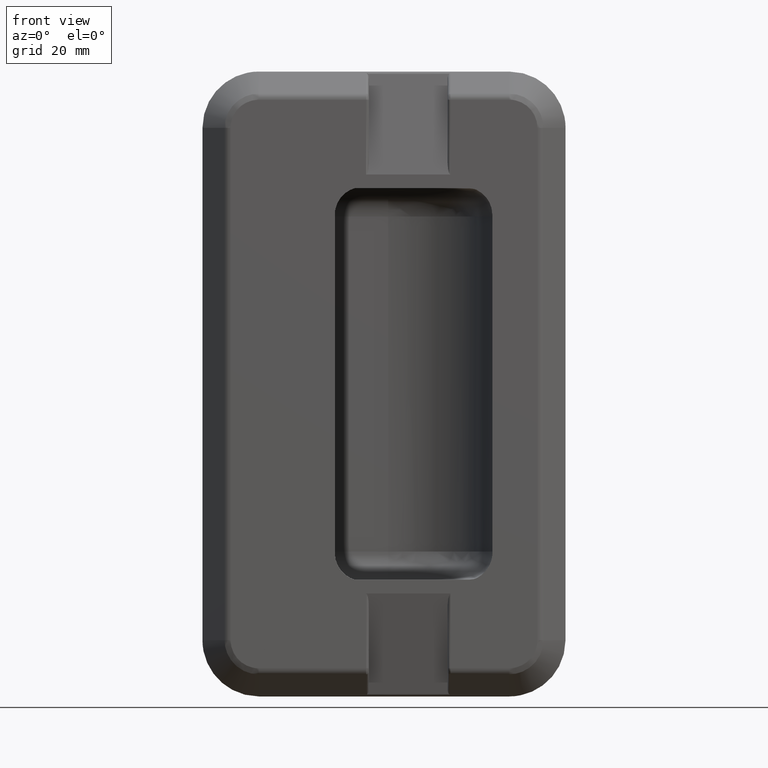
[diagram: clean part render]
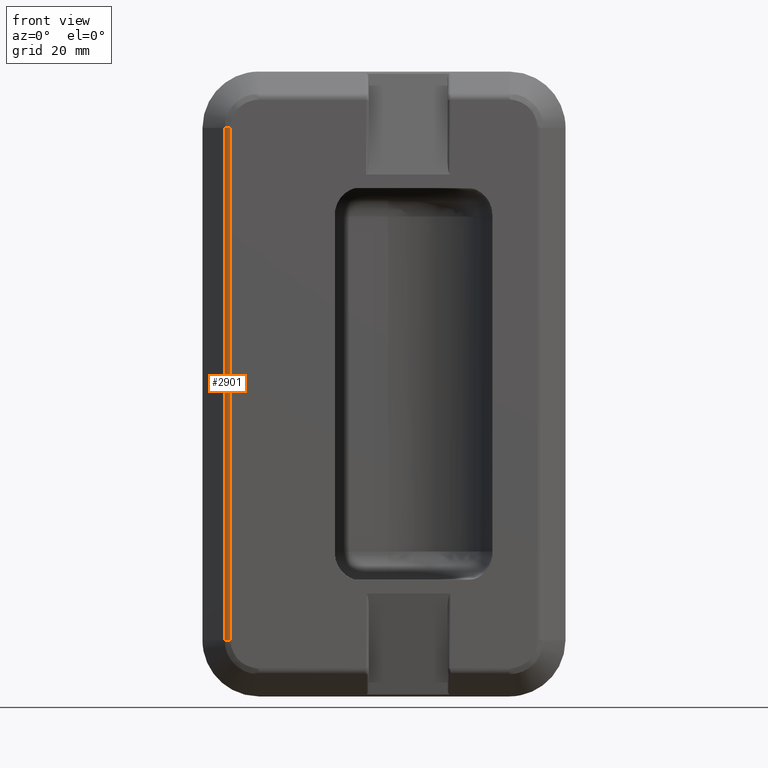
[diagram: same view with one face highlighted and labeled with its STEP entity id]
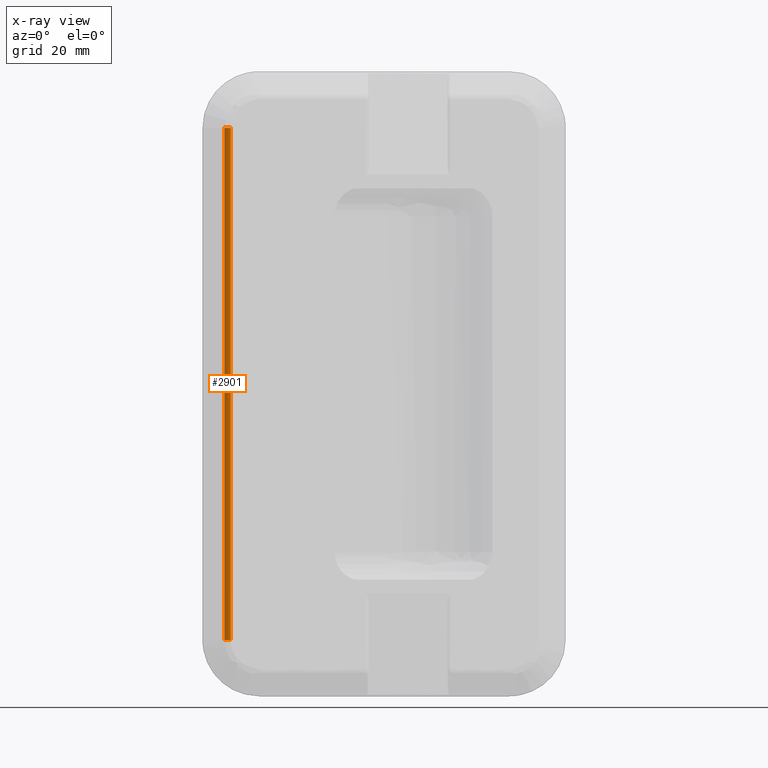
[diagram: x-ray of the same camera — body ghosted, the highlighted face saturated]
A machine part, front view. The second image highlights one B-rep face of the part: STEP entity #2901.
The next image is the same camera in x-ray: the body ghosted, the highlighted face saturated — about 0% of this face is hidden behind the body in this view.
In plain terms, the highlighted face is a freeform B-spline surface patch.
Its self-contained STEP definition (entity closure, byte-faithful):
#2810=CARTESIAN_POINT('',(4.999305062292249,-5.499985000000000,-45.500000000000000));
#2811=VERTEX_POINT('',#2810);
#2812=CARTESIAN_POINT('',(3.929068413499690,-5.050981439376041,-45.500000000000000));
#2813=VERTEX_POINT('',#2812);
#2814=CARTESIAN_POINT('',(4.999305062292249,-5.499985000000001,-45.500000000000000));
#2815=CARTESIAN_POINT('',(4.369999999999990,-5.499985000000002,-45.500000000000000));
#2816=CARTESIAN_POINT('',(3.929068413499653,-5.050981439376078,-45.500000000000000));
#2824=(BOUNDED_CURVE()B_SPLINE_CURVE(2,(#2814,#2815,#2816),.UNSPECIFIED.,.F.,.U.)CURVE()GEOMETRIC_REPRESENTATION_ITEM()QUASI_UNIFORM_CURVE()RATIONAL_B_SPLINE_CURVE((1.0,0.922134559844003,1.0))REPRESENTATION_ITEM(''));
#2825=EDGE_CURVE('',#2811,#2813,#2824,.T.);
#2857=CARTESIAN_POINT('',(5.012394865539849,-5.499927884596256,-47.775000000000013));
#2858=CARTESIAN_POINT('',(5.012394865539849,-5.499927884596256,47.831874999999997));
#2859=CARTESIAN_POINT('',(4.340883779716714,-5.505788073062283,-47.775000000000020));
#2860=CARTESIAN_POINT('',(4.340883779716714,-5.505788073062283,47.831875000000011));
#2861=CARTESIAN_POINT('',(3.889237092818066,-5.008820518381198,-47.775000000000013));
#2862=CARTESIAN_POINT('',(3.889237092818066,-5.008820518381198,47.831875000000004));
#2870=(BOUNDED_SURFACE()B_SPLINE_SURFACE(1,2,((#2857,#2859,#2861),(#2858,#2860,#2862)),.UNSPECIFIED.,.F.,.F.,.U.)B_SPLINE_SURFACE_WITH_KNOTS((2,2),(3,3),(0.0,95.606875000000016),(0.0,0.983930478927726),.UNSPECIFIED.)GEOMETRIC_REPRESENTATION_ITEM()RATIONAL_B_SPLINE_SURFACE(((1.0,0.911408150131513,0.997152742803413),(1.0,0.911408150131513,0.997152742803413)))REPRESENTATION_ITEM('')SURFACE());
#2871=CARTESIAN_POINT('',(4.999305062292289,-5.499985000000000,45.500000000000000));
#2872=VERTEX_POINT('',#2871);
#2873=CARTESIAN_POINT('',(3.929068413499690,-5.050981439376100,45.500000000000000));
#2874=VERTEX_POINT('',#2873);
#2875=CARTESIAN_POINT('',(4.999305062292289,-5.499985000000001,45.500000000000000));
#2876=CARTESIAN_POINT('',(4.370000000000037,-5.499985000000001,45.500000000000007));
#2877=CARTESIAN_POINT('',(3.929068413499703,-5.050981439376088,45.500000000000000));
#2885=(BOUNDED_CURVE()B_SPLINE_CURVE(2,(#2875,#2876,#2877),.UNSPECIFIED.,.F.,.U.)CURVE()GEOMETRIC_REPRESENTATION_ITEM()QUASI_UNIFORM_CURVE()RATIONAL_B_SPLINE_CURVE((1.0,0.922134559844005,1.0))REPRESENTATION_ITEM(''));
#2886=EDGE_CURVE('',#2872,#2874,#2885,.T.);
#2887=ORIENTED_EDGE('',*,*,#2886,.T.);
#2888=CARTESIAN_POINT('',(3.929068413499690,-5.050981439376041,-45.500000000000000));
#2889=CARTESIAN_POINT('',(3.929068413499690,-5.050981439376100,45.500000000000000));
#2890=QUASI_UNIFORM_CURVE('',1,(#2888,#2889),.UNSPECIFIED.,.F.,.U.);
#2891=EDGE_CURVE('',#2813,#2874,#2890,.T.);
#2892=ORIENTED_EDGE('',*,*,#2891,.F.);
#2893=ORIENTED_EDGE('',*,*,#2825,.F.);
#2894=CARTESIAN_POINT('',(4.999305062292289,-5.499985000000000,45.500000000000000));
#2895=CARTESIAN_POINT('',(4.999305062292249,-5.499985000000000,-45.500000000000000));
#2896=QUASI_UNIFORM_CURVE('',1,(#2894,#2895),.UNSPECIFIED.,.F.,.U.);
#2897=EDGE_CURVE('',#2872,#2811,#2896,.T.);
#2898=ORIENTED_EDGE('',*,*,#2897,.F.);
#2899=EDGE_LOOP('',(#2887,#2892,#2893,#2898));
#2900=FACE_OUTER_BOUND('',#2899,.T.);
#2901=ADVANCED_FACE('',(#2900),#2870,.T.);